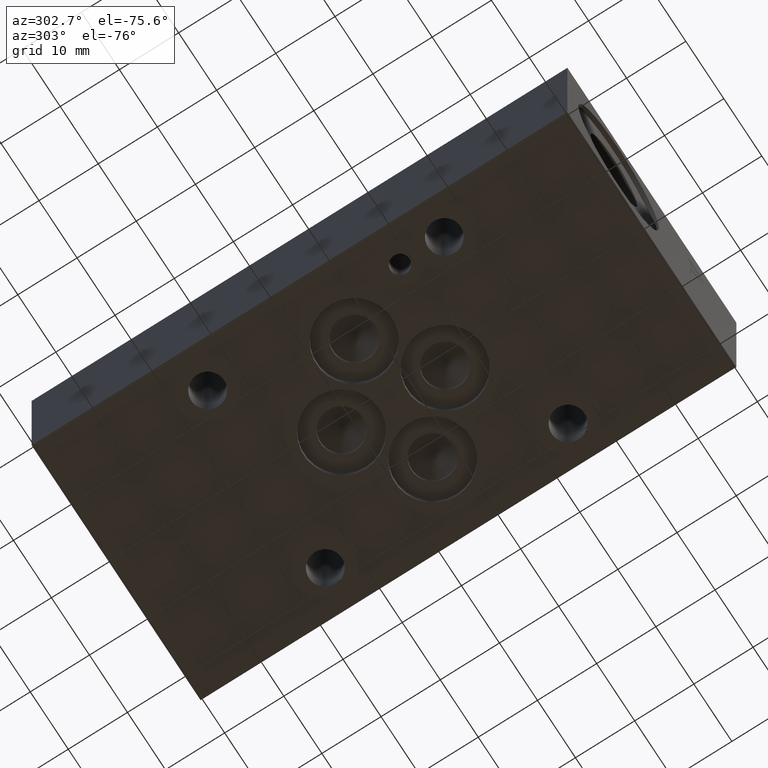
[diagram: clean part render]
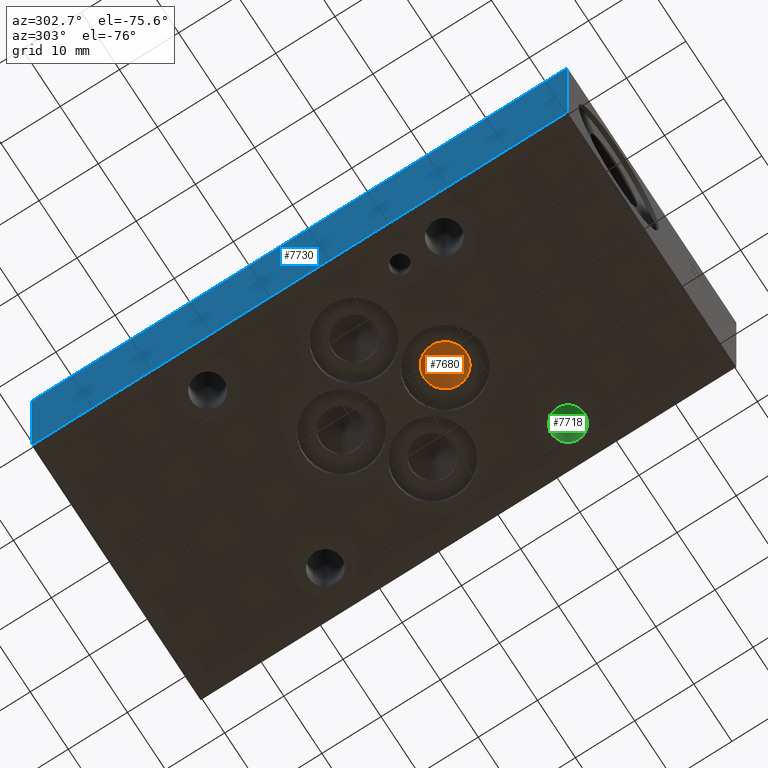
[diagram: same view with three faces highlighted in distinct colors, each labeled with its STEP entity id]
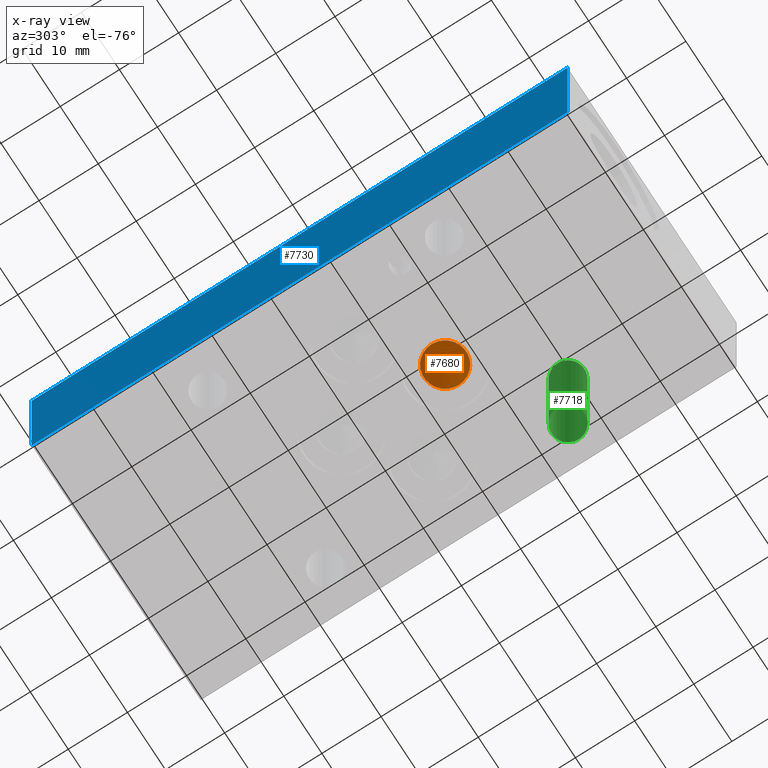
[diagram: x-ray of the same camera — body ghosted, the three highlighted faces saturated]
A machine part, auxiliary view with three faces highlighted in distinct colors.
The next image is the same camera in x-ray (body ghosted, the three faces saturated) — at least one of them is partly hidden behind the body in this view.
Their STEP definitions:

[orange] entity #7680 — the highlighted conical surface has half-angle 60 deg.
#47=CONICAL_SURFACE('',#8017,1.78435,1.0471975511966);
#67=CIRCLE('',#8018,3.5687);
#785=FACE_OUTER_BOUND('',#1215,.T.);
#1215=EDGE_LOOP('',(#6515,#6516,#6517));
#2064=LINE('',#12738,#2872);
#2872=VECTOR('',#9423,1.78435);
#3549=VERTEX_POINT('',#12735);
#3550=VERTEX_POINT('',#12737);
#4557=EDGE_CURVE('',#3549,#3549,#67,.T.);
#4558=EDGE_CURVE('',#3549,#3550,#2064,.T.);
#6515=ORIENTED_EDGE('',*,*,#4557,.T.);
#6516=ORIENTED_EDGE('',*,*,#4558,.T.);
#6517=ORIENTED_EDGE('',*,*,#4558,.F.);
#7680=ADVANCED_FACE('',(#785),#47,.F.);
#8017=AXIS2_PLACEMENT_3D('',#12734,#9419,#9420);
#8018=AXIS2_PLACEMENT_3D('',#12736,#9421,#9422);
#9419=DIRECTION('center_axis',(0.,0.,-1.));
#9420=DIRECTION('ref_axis',(1.,0.,0.));
#9421=DIRECTION('center_axis',(0.,0.,-1.));
#9422=DIRECTION('ref_axis',(1.,0.,0.));
#9423=DIRECTION('',(0.866025403784439,-1.06057523872491E-16,0.5));
#12734=CARTESIAN_POINT('Origin',(22.225,34.925,3.09058495282851));
#12735=CARTESIAN_POINT('',(18.6563,34.925,2.06039));
#12736=CARTESIAN_POINT('Origin',(22.225,34.925,2.06039));
#12737=CARTESIAN_POINT('',(22.225,34.925,4.12077990565702));
#12738=CARTESIAN_POINT('',(20.44065,34.925,3.09058495282851));

[blue] entity #7730 — the highlighted planar face has unit normal (-1, 0, 0).
#835=FACE_OUTER_BOUND('',#1275,.T.);
#1275=EDGE_LOOP('',(#6686,#6687,#6688,#6689));
#2057=LINE('',#12704,#2865);
#2104=LINE('',#12941,#2912);
#2105=LINE('',#12943,#2913);
#2106=LINE('',#12944,#2914);
#2865=VECTOR('',#9386,10.);
#2912=VECTOR('',#9667,10.);
#2913=VECTOR('',#9668,10.);
#2914=VECTOR('',#9669,10.);
#3537=VERTEX_POINT('',#12700);
#3538=VERTEX_POINT('',#12702);
#3611=VERTEX_POINT('',#12940);
#3612=VERTEX_POINT('',#12942);
#4543=EDGE_CURVE('',#3537,#3538,#2057,.T.);
#4650=EDGE_CURVE('',#3611,#3537,#2104,.T.);
#4651=EDGE_CURVE('',#3612,#3538,#2105,.T.);
#4652=EDGE_CURVE('',#3611,#3612,#2106,.T.);
#6686=ORIENTED_EDGE('',*,*,#4650,.T.);
#6687=ORIENTED_EDGE('',*,*,#4543,.T.);
#6688=ORIENTED_EDGE('',*,*,#4651,.F.);
#6689=ORIENTED_EDGE('',*,*,#4652,.F.);
#7000=PLANE('',#8120);
#7730=ADVANCED_FACE('',(#835),#7000,.T.);
#8120=AXIS2_PLACEMENT_3D('',#12939,#9665,#9666);
#9386=DIRECTION('',(0.,0.,1.));
#9665=DIRECTION('center_axis',(-1.,0.,0.));
#9666=DIRECTION('ref_axis',(0.,-1.,0.));
#9667=DIRECTION('',(0.,-1.,0.));
#9668=DIRECTION('',(0.,-1.,0.));
#9669=DIRECTION('',(0.,0.,1.));
#12700=CARTESIAN_POINT('',(0.,0.,0.));
#12702=CARTESIAN_POINT('',(0.,0.,25.4));
#12704=CARTESIAN_POINT('',(0.,0.,0.));
#12939=CARTESIAN_POINT('Origin',(0.,90.5002,0.));
#12940=CARTESIAN_POINT('',(0.,90.5002,0.));
#12941=CARTESIAN_POINT('',(0.,90.5002,0.));
#12942=CARTESIAN_POINT('',(0.,90.5002,25.4));
#12943=CARTESIAN_POINT('',(0.,90.5002,25.4));
#12944=CARTESIAN_POINT('',(0.,90.5002,0.));

[green] entity #7718 — the highlighted cylindrical surface (bore or boss wall) has radius 2.7686 mm, axis along (0, 0, 1).
#37=CYLINDRICAL_SURFACE('',#8094,2.7686);
#106=CIRCLE('',#8095,2.7686);
#107=CIRCLE('',#8096,2.7686);
#823=FACE_OUTER_BOUND('',#1263,.T.);
#1263=EDGE_LOOP('',(#6643,#6644,#6645,#6646));
#2092=LINE('',#12886,#2900);
#2900=VECTOR('',#9605,2.7686);
#3592=VERTEX_POINT('',#12883);
#3593=VERTEX_POINT('',#12885);
#4624=EDGE_CURVE('',#3592,#3592,#106,.T.);
#4625=EDGE_CURVE('',#3592,#3593,#2092,.T.);
#4626=EDGE_CURVE('',#3593,#3593,#107,.T.);
#6643=ORIENTED_EDGE('',*,*,#4624,.F.);
#6644=ORIENTED_EDGE('',*,*,#4625,.T.);
#6645=ORIENTED_EDGE('',*,*,#4626,.F.);
#6646=ORIENTED_EDGE('',*,*,#4625,.F.);
#7718=ADVANCED_FACE('',(#823),#37,.F.);
#8094=AXIS2_PLACEMENT_3D('',#12882,#9601,#9602);
#8095=AXIS2_PLACEMENT_3D('',#12884,#9603,#9604);
#8096=AXIS2_PLACEMENT_3D('',#12887,#9606,#9607);
#9601=DIRECTION('center_axis',(0.,0.,1.));
#9602=DIRECTION('ref_axis',(1.,0.,0.));
#9603=DIRECTION('center_axis',(0.,0.,-1.));
#9604=DIRECTION('ref_axis',(1.,0.,0.));
#9605=DIRECTION('',(0.,0.,-1.));
#9606=DIRECTION('center_axis',(0.,0.,1.));
#9607=DIRECTION('ref_axis',(1.,0.,0.));
#12882=CARTESIAN_POINT('Origin',(38.5064,24.6126,-78.5771547025596));
#12883=CARTESIAN_POINT('',(35.7378,24.6126,25.4));
#12884=CARTESIAN_POINT('Origin',(38.5064,24.6126,25.4));
#12885=CARTESIAN_POINT('',(35.7378,24.6126,0.));
#12886=CARTESIAN_POINT('',(35.7378,24.6126,-78.5771547025596));
#12887=CARTESIAN_POINT('Origin',(38.5064,24.6126,0.));